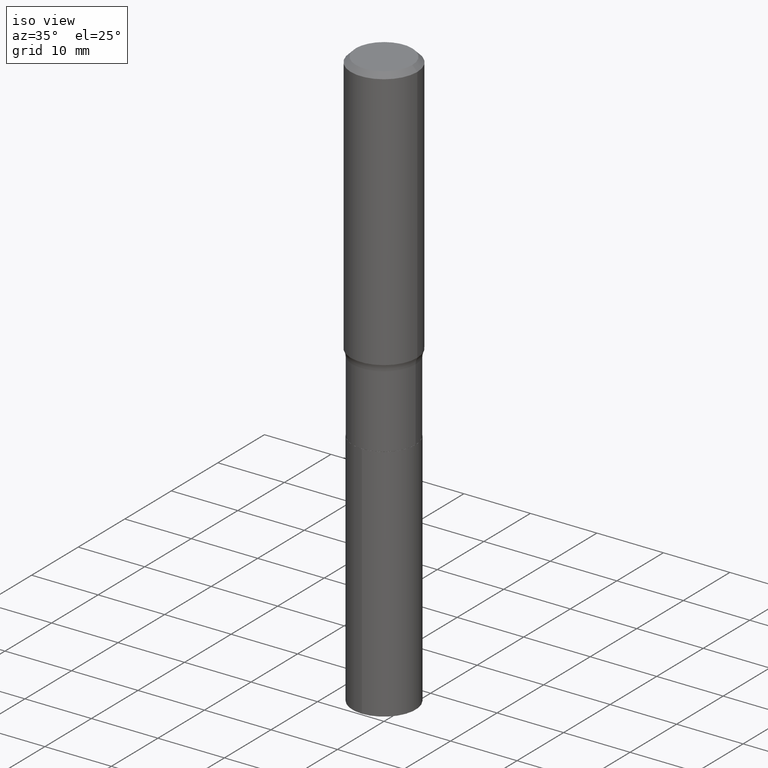
[diagram: clean part render]
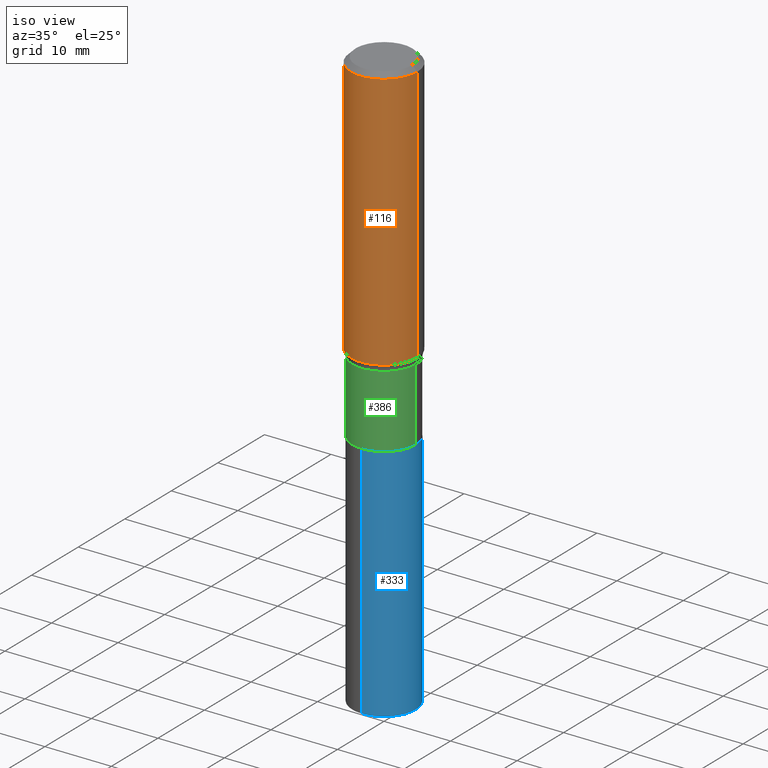
[diagram: same view with three faces highlighted in distinct colors, each labeled with its STEP entity id]
A machine part, iso view with three faces highlighted in distinct colors.
Their STEP definitions:

[orange] entity #116 — the highlighted cylindrical surface (partial cylindrical patch) has radius 5 mm, axis along (-0, 0, 1).
#4 = CARTESIAN_POINT ( 'NONE',  ( 7.220858017463209485E-31, -1.030947152326916609E-16, -0.02952750000000019595 ) ) ;
#5 = VERTEX_POINT ( 'NONE', #268 ) ;
#39 = VERTEX_POINT ( 'NONE', #174 ) ;
#40 = VERTEX_POINT ( 'NONE', #169 ) ;
#52 = ORIENTED_EDGE ( 'NONE', *, *, #206, .T. ) ;
#53 = CARTESIAN_POINT ( 'NONE',  ( -0.1968500000000001082, 1.398703375343757985E-15, -9.682923725166787881E-30 ) ) ;
#64 = AXIS2_PLACEMENT_3D ( 'NONE', #239, #217, #280 ) ;
#85 = EDGE_CURVE ( 'NONE', #249, #40, #404, .T. ) ;
#91 = DIRECTION ( 'NONE',  ( -2.445468806185136597E-29, 3.491481338843145583E-15, 1.000000000000000000 ) ) ;
#94 = ORIENTED_EDGE ( 'NONE', *, *, #483, .T. ) ;
#116 = ADVANCED_FACE ( 'NONE', ( #200 ), #490, .T. ) ;
#126 = EDGE_LOOP ( 'NONE', ( #196, #52, #94, #388 ) ) ;
#146 = AXIS2_PLACEMENT_3D ( 'NONE', #302, #318, #205 ) ;
#154 = CARTESIAN_POINT ( 'NONE',  ( -0.1968500000000001915, -4.046115952304854648E-15, -1.559458235412674032 ) ) ;
#166 = CIRCLE ( 'NONE', #469, 0.1968500000000000527 ) ;
#169 = CARTESIAN_POINT ( 'NONE',  ( -0.1968500000000000527, -1.375253646096893681E-15, -0.02952750000000019595 ) ) ;
#174 = CARTESIAN_POINT ( 'NONE',  ( 0.1968500000000001915, -6.819415530751155622E-15, -1.559458235412674032 ) ) ;
#196 = ORIENTED_EDGE ( 'NONE', *, *, #85, .F. ) ;
#200 = FACE_OUTER_BOUND ( 'NONE', #126, .T. ) ;
#205 = DIRECTION ( 'NONE',  ( 1.000000000000000000, -6.982962677686266711E-15, 0.000000000000000000 ) ) ;
#206 = EDGE_CURVE ( 'NONE', #249, #39, #427, .T. ) ;
#217 = DIRECTION ( 'NONE',  ( -2.445468806185136597E-29, 3.491481338843145583E-15, 1.000000000000000000 ) ) ;
#239 = CARTESIAN_POINT ( 'NONE',  ( 0.000000000000000000, 0.000000000000000000, 0.000000000000000000 ) ) ;
#249 = VERTEX_POINT ( 'NONE', #154 ) ;
#268 = CARTESIAN_POINT ( 'NONE',  ( 0.1968500000000000527, -1.477690918335233688E-15, -0.02952750000000019595 ) ) ;
#280 = DIRECTION ( 'NONE',  ( 1.000000000000000000, -6.982962677686266711E-15, 4.876176775795935793E-29 ) ) ;
#302 = CARTESIAN_POINT ( 'NONE',  ( 3.813606469250211988E-29, -5.444819327648612436E-15, -1.559458235412674032 ) ) ;
#309 = VECTOR ( 'NONE', #330, 39.37007874015748143 ) ;
#312 = DIRECTION ( 'NONE',  ( 1.000000000000000000, -6.982962677686266711E-15, 0.000000000000000000 ) ) ;
#313 = EDGE_CURVE ( 'NONE', #40, #5, #166, .T. ) ;
#318 = DIRECTION ( 'NONE',  ( -2.445468806185136597E-29, 3.491481338843145583E-15, 1.000000000000000000 ) ) ;
#327 = VECTOR ( 'NONE', #412, 39.37007874015748143 ) ;
#330 = DIRECTION ( 'NONE',  ( -2.445468806185136877E-29, 3.491481338843145188E-15, 1.000000000000000000 ) ) ;
#380 = CARTESIAN_POINT ( 'NONE',  ( 0.1968500000000001082, -1.374596203102542397E-15, 9.598753983154305062E-30 ) ) ;
#388 = ORIENTED_EDGE ( 'NONE', *, *, #313, .F. ) ;
#404 = LINE ( 'NONE', #53, #327 ) ;
#412 = DIRECTION ( 'NONE',  ( -2.445468806185136877E-29, 3.491481338843145188E-15, 1.000000000000000000 ) ) ;
#419 = LINE ( 'NONE', #380, #309 ) ;
#427 = CIRCLE ( 'NONE', #146, 0.1968500000000001915 ) ;
#469 = AXIS2_PLACEMENT_3D ( 'NONE', #4, #91, #312 ) ;
#483 = EDGE_CURVE ( 'NONE', #39, #5, #419, .T. ) ;
#490 = CYLINDRICAL_SURFACE ( 'NONE', #64, 0.1968500000000001082 ) ;

[blue] entity #333 — the highlighted cylindrical surface (partial cylindrical patch) has radius 4.7498 mm, axis along (-0, 0, 1).
#6 = CARTESIAN_POINT ( 'NONE',  ( 1.328714915871471555E-15, 0.1869999999999929496, -2.027500000000000302 ) ) ;
#11 = EDGE_LOOP ( 'NONE', ( #416, #377, #58, #98 ) ) ;
#19 = EDGE_CURVE ( 'NONE', #258, #355, #324, .T. ) ;
#27 = DIRECTION ( 'NONE',  ( -2.445146056917443157E-29, 3.491943534164230520E-15, 1.000000000000000000 ) ) ;
#29 = AXIS2_PLACEMENT_3D ( 'NONE', #88, #57, #450 ) ;
#30 = EDGE_CURVE ( 'NONE', #355, #370, #371, .T. ) ;
#38 = DIRECTION ( 'NONE',  ( -2.445146056917442877E-29, 3.491943534164230520E-15, 1.000000000000000000 ) ) ;
#57 = DIRECTION ( 'NONE',  ( -2.445146056917442877E-29, 3.491943534164230520E-15, 1.000000000000000000 ) ) ;
#58 = ORIENTED_EDGE ( 'NONE', *, *, #434, .F. ) ;
#74 = DIRECTION ( 'NONE',  ( -2.445146056917443157E-29, 3.491943534164230520E-15, 1.000000000000000000 ) ) ;
#88 = CARTESIAN_POINT ( 'NONE',  ( 4.958188004540364383E-29, -7.078978414504477806E-15, -2.027499999999999858 ) ) ;
#98 = ORIENTED_EDGE ( 'NONE', *, *, #281, .F. ) ;
#99 = DIRECTION ( 'NONE',  ( -6.982962677686266711E-15, -1.000000000000000000, 2.921762560068730595E-15 ) ) ;
#120 = VECTOR ( 'NONE', #27, 39.37007874015748143 ) ;
#122 = AXIS2_PLACEMENT_3D ( 'NONE', #215, #38, #99 ) ;
#142 = CARTESIAN_POINT ( 'NONE',  ( 8.424033695572536525E-29, -1.202859580728641692E-14, -3.444939126479630076 ) ) ;
#215 = CARTESIAN_POINT ( 'NONE',  ( 4.958188004540364383E-29, -7.078978414504477806E-15, -2.027499999999999858 ) ) ;
#230 = CARTESIAN_POINT ( 'NONE',  ( -1.305814020727282303E-15, -0.1870000000000070772, -2.027499999999999414 ) ) ;
#233 = VECTOR ( 'NONE', #74, 39.37007874015748143 ) ;
#248 = CARTESIAN_POINT ( 'NONE',  ( 1.328714915871436648E-15, 0.1869999999999929496, -2.027500000000000302 ) ) ;
#258 = VERTEX_POINT ( 'NONE', #449 ) ;
#281 = EDGE_CURVE ( 'NONE', #258, #328, #417, .T. ) ;
#322 = DIRECTION ( 'NONE',  ( -6.982962677686266711E-15, -1.000000000000000000, 2.921762560068730595E-15 ) ) ;
#324 = CIRCLE ( 'NONE', #364, 0.1869999999999999996 ) ;
#328 = VERTEX_POINT ( 'NONE', #332 ) ;
#332 = CARTESIAN_POINT ( 'NONE',  ( -1.305814020727282303E-15, -0.1870000000000070772, -2.027499999999999414 ) ) ;
#333 = ADVANCED_FACE ( 'NONE', ( #341 ), #460, .T. ) ;
#341 = FACE_OUTER_BOUND ( 'NONE', #11, .T. ) ;
#348 = CARTESIAN_POINT ( 'NONE',  ( 1.328714915871472344E-15, 0.1869999999999880924, -3.444939126479630964 ) ) ;
#355 = VERTEX_POINT ( 'NONE', #348 ) ;
#364 = AXIS2_PLACEMENT_3D ( 'NONE', #142, #462, #322 ) ;
#370 = VERTEX_POINT ( 'NONE', #6 ) ;
#371 = LINE ( 'NONE', #248, #120 ) ;
#376 = CIRCLE ( 'NONE', #29, 0.1869999999999999996 ) ;
#377 = ORIENTED_EDGE ( 'NONE', *, *, #30, .T. ) ;
#416 = ORIENTED_EDGE ( 'NONE', *, *, #19, .T. ) ;
#417 = LINE ( 'NONE', #230, #233 ) ;
#434 = EDGE_CURVE ( 'NONE', #328, #370, #376, .T. ) ;
#449 = CARTESIAN_POINT ( 'NONE',  ( -1.305814020727248382E-15, -0.1870000000000121287, -3.444939126479629632 ) ) ;
#450 = DIRECTION ( 'NONE',  ( -6.982962677686266711E-15, -1.000000000000000000, 2.921762560068730595E-15 ) ) ;
#460 = CYLINDRICAL_SURFACE ( 'NONE', #122, 0.1869999999999999996 ) ;
#462 = DIRECTION ( 'NONE',  ( -2.445146056917442877E-29, 3.491943534164230520E-15, 1.000000000000000000 ) ) ;

[green] entity #386 — the highlighted cylindrical surface (partial cylindrical patch) has radius 4.7498 mm, axis along (-0, 0, 1).
#2 = CARTESIAN_POINT ( 'NONE',  ( -0.1869999999999999996, -4.998547566380161442E-15, -2.027000000000000135 ) ) ;
#3 = VERTEX_POINT ( 'NONE', #422 ) ;
#9 = FACE_OUTER_BOUND ( 'NONE', #384, .T. ) ;
#12 = DIRECTION ( 'NONE',  ( 1.000000000000000000, -6.982962677686265133E-15, 0.000000000000000000 ) ) ;
#41 = CARTESIAN_POINT ( 'NONE',  ( 0.000000000000000000, 0.000000000000000000, 0.000000000000000000 ) ) ;
#48 = DIRECTION ( 'NONE',  ( -2.445468806185136597E-29, 3.491481338843145583E-15, 1.000000000000000000 ) ) ;
#49 = AXIS2_PLACEMENT_3D ( 'NONE', #471, #48, #320 ) ;
#62 = ORIENTED_EDGE ( 'NONE', *, *, #162, .F. ) ;
#83 = AXIS2_PLACEMENT_3D ( 'NONE', #41, #353, #150 ) ;
#104 = VECTOR ( 'NONE', #361, 39.37007874015748143 ) ;
#139 = CARTESIAN_POINT ( 'NONE',  ( 0.1869999999999999718, -1.305814020727331607E-15, 9.118450570738398307E-30 ) ) ;
#140 = CARTESIAN_POINT ( 'NONE',  ( 0.1869999999999999996, -8.383046694562388303E-15, -2.027000000000000135 ) ) ;
#150 = DIRECTION ( 'NONE',  ( 1.000000000000000000, -6.982962677686266711E-15, 4.876176775795935793E-29 ) ) ;
#152 = EDGE_CURVE ( 'NONE', #189, #413, #264, .T. ) ;
#156 = CIRCLE ( 'NONE', #49, 0.1869999999999999440 ) ;
#162 = EDGE_CURVE ( 'NONE', #3, #474, #156, .T. ) ;
#187 = EDGE_CURVE ( 'NONE', #189, #3, #375, .T. ) ;
#189 = VERTEX_POINT ( 'NONE', #2 ) ;
#194 = CYLINDRICAL_SURFACE ( 'NONE', #83, 0.1869999999999999718 ) ;
#264 = CIRCLE ( 'NONE', #443, 0.1869999999999999996 ) ;
#270 = ORIENTED_EDGE ( 'NONE', *, *, #300, .T. ) ;
#291 = CARTESIAN_POINT ( 'NONE',  ( 0.1869999999999999440, -6.883106311395371695E-15, -1.597399999999999709 ) ) ;
#294 = VECTOR ( 'NONE', #307, 39.37007874015748143 ) ;
#300 = EDGE_CURVE ( 'NONE', #413, #474, #446, .T. ) ;
#307 = DIRECTION ( 'NONE',  ( -2.445468806185136877E-29, 3.491481338843145188E-15, 1.000000000000000000 ) ) ;
#320 = DIRECTION ( 'NONE',  ( 1.000000000000000000, -6.982962677686267499E-15, 0.000000000000000000 ) ) ;
#343 = DIRECTION ( 'NONE',  ( -2.445468806185136597E-29, 3.491481338843145583E-15, 1.000000000000000000 ) ) ;
#352 = ORIENTED_EDGE ( 'NONE', *, *, #187, .F. ) ;
#353 = DIRECTION ( 'NONE',  ( -2.445468806185136597E-29, 3.491481338843145583E-15, 1.000000000000000000 ) ) ;
#361 = DIRECTION ( 'NONE',  ( -2.445468806185136877E-29, 3.491481338843145188E-15, 1.000000000000000000 ) ) ;
#375 = LINE ( 'NONE', #431, #104 ) ;
#384 = EDGE_LOOP ( 'NONE', ( #352, #440, #270, #62 ) ) ;
#386 = ADVANCED_FACE ( 'NONE', ( #9 ), #194, .T. ) ;
#413 = VERTEX_POINT ( 'NONE', #140 ) ;
#414 = CARTESIAN_POINT ( 'NONE',  ( 4.956965270137271581E-29, -7.077232673835056302E-15, -2.027000000000000135 ) ) ;
#422 = CARTESIAN_POINT ( 'NONE',  ( -0.1869999999999999440, -4.998547566380161442E-15, -1.597399999999999709 ) ) ;
#431 = CARTESIAN_POINT ( 'NONE',  ( -0.1869999999999999718, 1.328714915871387147E-15, -9.198408618776671699E-30 ) ) ;
#440 = ORIENTED_EDGE ( 'NONE', *, *, #152, .T. ) ;
#443 = AXIS2_PLACEMENT_3D ( 'NONE', #414, #343, #12 ) ;
#446 = LINE ( 'NONE', #139, #294 ) ;
#471 = CARTESIAN_POINT ( 'NONE',  ( 3.906391871000136996E-29, -5.577292290668039694E-15, -1.597399999999999709 ) ) ;
#474 = VERTEX_POINT ( 'NONE', #291 ) ;